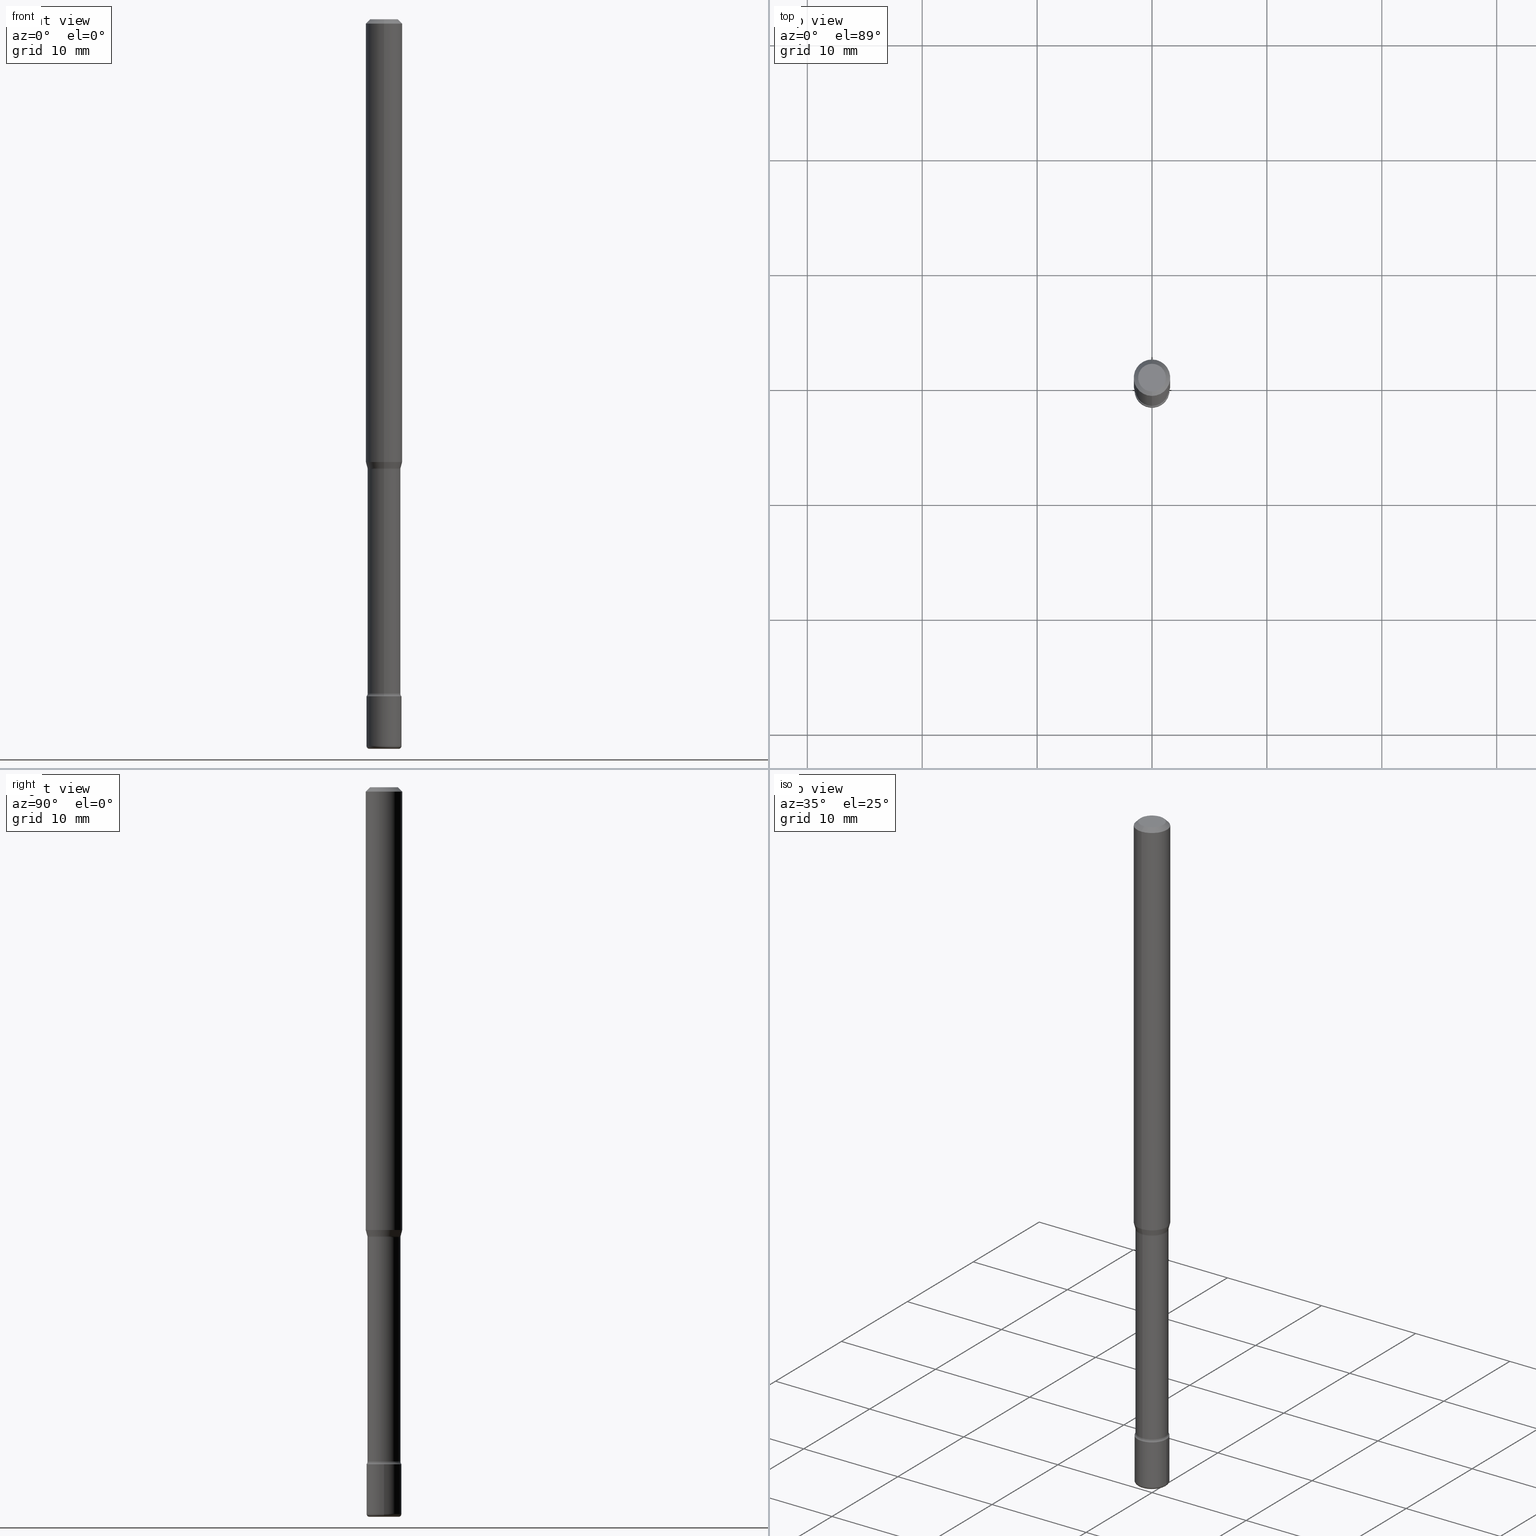
[diagram: canonical four-view strip — front | top / right | iso, engineering-drawing reading convention]
A machine part, canonical four-view strip (front | top / right | iso — engineering-drawing reading convention). The complete STEP part file that produces these views, byte-faithful:
ISO-10303-21;
HEADER;
FILE_DESCRIPTION (( 'STEP AP203' ),
    '1' );
FILE_NAME ('08981.STEP',
    '2024-03-06T20:13:47',
    ( '' ),
    ( '' ),
    'SwSTEP 2.0',
    'SolidWorks 2023',
    '' );
FILE_SCHEMA (( 'CONFIG_CONTROL_DESIGN' ));
ENDSEC;

DATA;
#1 = DIRECTION ( 'NONE',  ( -1.000000000000000000, 6.982962677686265922E-15, -4.876176775795935793E-29 ) ) ;
#2 = EDGE_CURVE ( 'NONE', #443, #77, #262, .T. ) ;
#3 = DIRECTION ( 'NONE',  ( -2.445374119236681714E-29, 3.491616935942579411E-15, 1.000000000000000000 ) ) ;
#4 = VECTOR ( 'NONE', #547, 39.37007874015748143 ) ;
#5 = AXIS2_PLACEMENT_3D ( 'NONE', #513, #472, #1 ) ;
#6 = LINE ( 'NONE', #192, #140 ) ;
#7 = DIRECTION ( 'NONE',  ( 1.000000000000000000, -6.982962677686275388E-15, 0.000000000000000000 ) ) ;
#8 = FACE_OUTER_BOUND ( 'NONE', #310, .T. ) ;
#9 = DIRECTION ( 'NONE',  ( -2.445374119236681714E-29, 3.491616935942579411E-15, 1.000000000000000000 ) ) ;
#10 = DIRECTION ( 'NONE',  ( -6.982962677686265922E-15, -1.000000000000000000, 4.370956789862821150E-15 ) ) ;
#11 = ADVANCED_FACE ( 'NONE', ( #477 ), #107, .F. ) ;
#12 = CARTESIAN_POINT ( 'NONE',  ( 0.04999999999999999584, -9.042936667603745051E-15, -2.489999999999999769 ) ) ;
#13 = CYLINDRICAL_SURFACE ( 'NONE', #268, 0.05999999999999999778 ) ;
#14 = DIRECTION ( 'NONE',  ( 7.105427357601001859E-15, 1.000000000000000000, 0.000000000000000000 ) ) ;
#15 = VECTOR ( 'NONE', #73, 39.37007874015748143 ) ;
#16 = APPROVAL_ROLE ( '' ) ;
#17 = LENGTH_MEASURE_WITH_UNIT ( LENGTH_MEASURE( 0.02539999999999999897 ), #219 );
#18 = EDGE_LOOP ( 'NONE', ( #525, #429, #207, #306 ) ) ;
#19 =( NAMED_UNIT ( * ) PLANE_ANGLE_UNIT ( ) SI_UNIT ( $, .RADIAN. ) );
#20 = CARTESIAN_POINT ( 'NONE',  ( -0.04999999999999999584, -8.320447435745592091E-15, -2.500000000000000000 ) ) ;
#21 = ORIENTED_EDGE ( 'NONE', *, *, #122, .F. ) ;
#22 = ORIENTED_EDGE ( 'NONE', *, *, #232, .T. ) ;
#23 = AXIS2_PLACEMENT_3D ( 'NONE', #277, #459, #491 ) ;
#24 = AXIS2_PLACEMENT_3D ( 'NONE', #129, #439, #299 ) ;
#25 = ORIENTED_EDGE ( 'NONE', *, *, #74, .F. ) ;
#26 = DIRECTION ( 'NONE',  ( -6.982962677686265133E-15, -1.000000000000000000, 3.491616935942579411E-15 ) ) ;
#27 = DIRECTION ( 'NONE',  ( -2.445374119236681714E-29, 3.491616935942579411E-15, 1.000000000000000000 ) ) ;
#28 = EDGE_CURVE ( 'NONE', #424, #79, #127, .T. ) ;
#29 = EDGE_LOOP ( 'NONE', ( #128, #231, #246, #254 ) ) ;
#30 = FACE_OUTER_BOUND ( 'NONE', #555, .T. ) ;
#31 = ORIENTED_EDGE ( 'NONE', *, *, #67, .F. ) ;
#32 = CIRCLE ( 'NONE', #172, 0.05691111260566398405 ) ;
#33 = AXIS2_PLACEMENT_3D ( 'NONE', #138, #276, #94 ) ;
#34 = ORIENTED_EDGE ( 'NONE', *, *, #251, .F. ) ;
#35 = DIRECTION ( 'NONE',  ( -2.445468806185136597E-29, 3.491481338843145583E-15, 1.000000000000000000 ) ) ;
#36 = CARTESIAN_POINT ( 'NONE',  ( 5.673487630349517039E-29, -8.100236706116098414E-15, -2.320000000000000284 ) ) ;
#37 = DIRECTION ( 'NONE',  ( -2.445374119236681714E-29, 3.491616935942579411E-15, 1.000000000000000000 ) ) ;
#38 = FACE_OUTER_BOUND ( 'NONE', #18, .T. ) ;
#39 = SECURITY_CLASSIFICATION_LEVEL ( 'unclassified' ) ;
#40 = DIRECTION ( 'NONE',  ( -2.445374119236681714E-29, 3.491616935942579411E-15, 1.000000000000000000 ) ) ;
#41 = AXIS2_PLACEMENT_3D ( 'NONE', #544, #149, #10 ) ;
#42 = AXIS2_PLACEMENT_3D ( 'NONE', #528, #346, #356 ) ;
#43 = DIRECTION ( 'NONE',  ( -2.445468806185136597E-29, 3.491481338843145583E-15, 1.000000000000000000 ) ) ;
#44 = APPLICATION_PROTOCOL_DEFINITION ( 'international standard', 'config_control_design', 1994, #351 ) ;
#45 = DATE_AND_TIME ( #90, #303 ) ;
#46 = EDGE_CURVE ( 'NONE', #77, #392, #176, .T. ) ;
#47 = CARTESIAN_POINT ( 'NONE',  ( 3.761211596862597210E-29, -5.370429828286734542E-15, -1.538092501787273081 ) ) ;
#48 = DIRECTION ( 'NONE',  ( -2.445374119236681714E-29, 3.491616935942579411E-15, 1.000000000000000000 ) ) ;
#49 = CARTESIAN_POINT ( 'NONE',  ( 4.007461029686965452E-16, 0.05640000000000001262, 2.811462037040845346E-16 ) ) ;
#50 = APPROVAL_STATUS ( 'not_yet_approved' ) ;
#51 = AXIS2_PLACEMENT_3D ( 'NONE', #312, #270, #453 ) ;
#52 = CIRCLE ( 'NONE', #458, 0.05999999999999999778 ) ;
#53 = DIRECTION ( 'NONE',  ( -2.445374119236681714E-29, 3.491616935942579411E-15, 1.000000000000000000 ) ) ;
#54 = EDGE_CURVE ( 'NONE', #160, #390, #85, .T. ) ;
#55 = FACE_OUTER_BOUND ( 'NONE', #385, .T. ) ;
#56 = SHAPE_DEFINITION_REPRESENTATION ( #307, #186 ) ;
#57 = CARTESIAN_POINT ( 'NONE',  ( 6.618217965397815086E-46, -9.462740114103690246E-32, -2.708274633491637065E-17 ) ) ;
#58 = CARTESIAN_POINT ( 'NONE',  ( 4.135358722124349706E-16, 0.05639999999999196351, -2.310251153914437250 ) ) ;
#59 = CYLINDRICAL_SURFACE ( 'NONE', #422, 0.05640000000000001262 ) ;
#60 = ORIENTED_EDGE ( 'NONE', *, *, #438, .F. ) ;
#61 = CONICAL_SURFACE ( 'NONE', #92, 0.05691111260566398405, 0.2617993877991477980 ) ;
#62 = VECTOR ( 'NONE', #194, 39.37007874015748854 ) ;
#63 = PLANE ( 'NONE',  #499 ) ;
#64 = DATE_AND_TIME ( #376, #115 ) ;
#65 = CC_DESIGN_PERSON_AND_ORGANIZATION_ASSIGNMENT ( #419, #510, ( #333 ) ) ;
#66 = EDGE_LOOP ( 'NONE', ( #215, #295, #25, #508 ) ) ;
#67 = EDGE_CURVE ( 'NONE', #298, #443, #405, .T. ) ;
#68 = DIRECTION ( 'NONE',  ( 6.982962677686265922E-15, 1.000000000000000000, -3.483106191921935554E-15 ) ) ;
#69 = ORIENTED_EDGE ( 'NONE', *, *, #416, .T. ) ;
#70 = CARTESIAN_POINT ( 'NONE',  ( 5.073275133327491387E-16, 0.07139999999999460667, -1.541974787463811225 ) ) ;
#71 = ORIENTED_EDGE ( 'NONE', *, *, #261, .F. ) ;
#72 = CIRCLE ( 'NONE', #302, 0.04999999999999999584 ) ;
#73 = DIRECTION ( 'NONE',  ( 1.839019923739583355E-15, 0.2588190451025225713, 0.9659258262890678681 ) ) ;
#74 = EDGE_CURVE ( 'NONE', #516, #300, #479, .T. ) ;
#75 = ORIENTED_EDGE ( 'NONE', *, *, #28, .T. ) ;
#76 = CARTESIAN_POINT ( 'NONE',  ( 0.06000000000000004635, -9.112766294380608350E-15, -2.489999999999999769 ) ) ;
#77 = VERTEX_POINT ( 'NONE', #430 ) ;
#78 = FACE_OUTER_BOUND ( 'NONE', #110, .T. ) ;
#79 = VERTEX_POINT ( 'NONE', #398 ) ;
#80 = CARTESIAN_POINT ( 'NONE',  ( 6.113672015462842613E-29, -8.728703347107864943E-15, -2.500000000000000000 ) ) ;
#81 = CARTESIAN_POINT ( 'NONE',  ( 3.761211596862597210E-29, -5.370429828286734542E-15, -1.538092501787273081 ) ) ;
#82 = FACE_OUTER_BOUND ( 'NONE', #476, .T. ) ;
#83 = TOROIDAL_SURFACE ( 'NONE', #235, 0.07140000000000003288, 0.01500000000000000812 ) ;
#84 = LOCAL_TIME ( 15, 13, 47.00000000000000000, #505 ) ;
#85 = CIRCLE ( 'NONE', #42, 0.01500000000000000291 ) ;
#86 = EDGE_CURVE ( 'NONE', #253, #443, #248, .T. ) ;
#87 = DIRECTION ( 'NONE',  ( -4.851104656540965064E-15, -0.7071067811865501263, -0.7071067811865449082 ) ) ;
#88 = DIRECTION ( 'NONE',  ( -2.445374119236681714E-29, 3.491616935942579411E-15, 1.000000000000000000 ) ) ;
#89 = ORIENTED_EDGE ( 'NONE', *, *, #363, .T. ) ;
#90 = CALENDAR_DATE ( 2024, 6, 3 ) ;
#91 = CARTESIAN_POINT ( 'NONE',  ( 3.668061178855029262E-31, -5.237425403913879570E-17, -0.01500000000000002720 ) ) ;
#92 = AXIS2_PLACEMENT_3D ( 'NONE', #490, #27, #337 ) ;
#93 = ORIENTED_EDGE ( 'NONE', *, *, #28, .F. ) ;
#94 = DIRECTION ( 'NONE',  ( -6.982962677686265922E-15, -1.000000000000000000, 3.491616935942578228E-15 ) ) ;
#95 = CARTESIAN_POINT ( 'NONE',  ( 3.710205954839807473E-29, -5.297601641337987414E-15, -1.517234490073829711 ) ) ;
#96 = DIRECTION ( 'NONE',  ( -2.445468806185136597E-29, 3.491481338843145583E-15, 1.000000000000000000 ) ) ;
#97 = LINE ( 'NONE', #49, #535 ) ;
#98 = EDGE_CURVE ( 'NONE', #123, #298, #116, .T. ) ;
#99 = DIRECTION ( 'NONE',  ( 1.000000000000000000, -6.982962677686275388E-15, 4.883557194083115704E-29 ) ) ;
#100 = CIRCLE ( 'NONE', #285, 0.05639999999999999181 ) ;
#101 = CC_DESIGN_APPROVAL ( #239, ( #121 ) ) ;
#102 = DIRECTION ( 'NONE',  ( -6.982962677686265922E-15, -1.000000000000000000, 4.370956789862821150E-15 ) ) ;
#103 = FACE_OUTER_BOUND ( 'NONE', #292, .T. ) ;
#104 = DIRECTION ( 'NONE',  ( -6.982962677686265922E-15, -1.000000000000000000, 4.843702116425999219E-15 ) ) ;
#105 = ORIENTED_EDGE ( 'NONE', *, *, #485, .F. ) ;
#106 = AXIS2_PLACEMENT_3D ( 'NONE', #57, #53, #417 ) ;
#107 = TOROIDAL_SURFACE ( 'NONE', #425, 0.07139999999999999125, 0.01500000000000002373 ) ;
#108 =( NAMED_UNIT ( * ) SI_UNIT ( $, .STERADIAN. ) SOLID_ANGLE_UNIT ( ) );
#109 = DIRECTION ( 'NONE',  ( -2.445374119236681714E-29, 3.491616935942579411E-15, 1.000000000000000000 ) ) ;
#110 = EDGE_LOOP ( 'NONE', ( #31, #488, #119, #509 ) ) ;
#111 = CARTESIAN_POINT ( 'NONE',  ( 6.618217965397815086E-46, -9.462740114103690246E-32, -2.708274633491637065E-17 ) ) ;
#112 = VERTEX_POINT ( 'NONE', #520 ) ;
#113 = ADVANCED_FACE ( 'NONE', ( #78 ), #224, .T. ) ;
#114 = ORIENTED_EDGE ( 'NONE', *, *, #214, .T. ) ;
#115 = LOCAL_TIME ( 15, 13, 47.00000000000000000, #504 ) ;
#116 = CIRCLE ( 'NONE', #157, 0.04999999999999999584 ) ;
#117 = EDGE_LOOP ( 'NONE', ( #21, #131, #558, #565 ) ) ;
#118 = DIRECTION ( 'NONE',  ( -6.982962677686265922E-15, -1.000000000000000000, 3.491616935942579411E-15 ) ) ;
#119 = ORIENTED_EDGE ( 'NONE', *, *, #178, .T. ) ;
#120 = CARTESIAN_POINT ( 'NONE',  ( 3.770851242666705328E-29, -5.383776195396521708E-15, -1.541974787463811003 ) ) ;
#121 = PRODUCT_DEFINITION ( 'UNKNOWN', '', #333, #539 ) ;
#122 = EDGE_CURVE ( 'NONE', #136, #290, #553, .T. ) ;
#123 = VERTEX_POINT ( 'NONE', #540 ) ;
#124 = CIRCLE ( 'NONE', #411, 0.04749999999999998668 ) ;
#125 = DIRECTION ( 'NONE',  ( -2.445374119236681994E-29, 3.491616935942579411E-15, 1.000000000000000000 ) ) ;
#126 = CC_DESIGN_SECURITY_CLASSIFICATION ( #257, ( #333 ) ) ;
#127 = CIRCLE ( 'NONE', #189, 0.06250000000000000000 ) ;
#128 = ORIENTED_EDGE ( 'NONE', *, *, #98, .T. ) ;
#129 = CARTESIAN_POINT ( 'NONE',  ( -0.04999999999999999584, -8.338517165839381307E-15, -2.489999999999999769 ) ) ;
#130 = PRODUCT ( '08981', '08981', '', ( #399 ) ) ;
#131 = ORIENTED_EDGE ( 'NONE', *, *, #294, .T. ) ;
#132 = CARTESIAN_POINT ( 'NONE',  ( 6.089217327400989947E-29, -8.693788533719431716E-15, -2.489999999999999769 ) ) ;
#133 = CARTESIAN_POINT ( 'NONE',  ( -0.06000000000000004635, -8.267462892263371226E-15, -2.489999999999999769 ) ) ;
#134 = EDGE_CURVE ( 'NONE', #290, #208, #230, .T. ) ;
#135 = CARTESIAN_POINT ( 'NONE',  ( -4.364351673553916201E-16, -0.06250000000000000000, 6.962994573876572271E-16 ) ) ;
#136 = VERTEX_POINT ( 'NONE', #541 ) ;
#137 = APPROVAL_DATE_TIME ( #191, #501 ) ;
#138 = CARTESIAN_POINT ( 'NONE',  ( -1.169113584055446105E-44, 1.669184350826100908E-30, 4.780733988912460139E-16 ) ) ;
#139 = CARTESIAN_POINT ( 'NONE',  ( -4.985835351867615991E-16, -0.07140000000000538971, -1.541974787463810781 ) ) ;
#140 = VECTOR ( 'NONE', #369, 39.37007874015748143 ) ;
#141 = VECTOR ( 'NONE', #564, 39.37007874015748143 ) ;
#142 = CARTESIAN_POINT ( 'NONE',  ( 4.189777606612326922E-16, 0.05999999999999190009, -2.320000000000000284 ) ) ;
#143 = CARTESIAN_POINT ( 'NONE',  ( 5.649428380719043834E-29, -8.066512055288535170E-15, -2.310251153914436806 ) ) ;
#144 = DIRECTION ( 'NONE',  ( -6.982962677686265133E-15, -1.000000000000000000, 3.491616935942579411E-15 ) ) ;
#145 = CYLINDRICAL_SURFACE ( 'NONE', #33, 0.06250000000000000000 ) ;
#146 = CONICAL_SURFACE ( 'NONE', #469, 0.06250000000000000000, 0.7853981633974485010 ) ;
#147 =( CONVERSION_BASED_UNIT ( 'INCH', #17 ) LENGTH_UNIT ( ) NAMED_UNIT ( #169 ) );
#148 = DIRECTION ( 'NONE',  ( 1.000000000000000000, -6.982962677686275388E-15, 4.883557194083115704E-29 ) ) ;
#149 = DIRECTION ( 'NONE',  ( -2.445374119236681714E-29, 3.491616935942579411E-15, 1.000000000000000000 ) ) ;
#150 = APPROVAL_STATUS ( 'not_yet_approved' ) ;
#151 = ADVANCED_FACE ( 'NONE', ( #460 ), #145, .T. ) ;
#152 = FACE_OUTER_BOUND ( 'NONE', #464, .T. ) ;
#153 = ORIENTED_EDGE ( 'NONE', *, *, #243, .F. ) ;
#154 = DIRECTION ( 'NONE',  ( -6.982962677686265133E-15, -1.000000000000000000, 3.491616935942579411E-15 ) ) ;
#155 = VERTEX_POINT ( 'NONE', #454 ) ;
#156 = AXIS2_PLACEMENT_3D ( 'NONE', #95, #279, #102 ) ;
#157 = AXIS2_PLACEMENT_3D ( 'NONE', #393, #43, #348 ) ;
#158 = FACE_OUTER_BOUND ( 'NONE', #66, .T. ) ;
#159 = EDGE_CURVE ( 'NONE', #112, #160, #305, .T. ) ;
#160 = VERTEX_POINT ( 'NONE', #58 ) ;
#161 = ORIENTED_EDGE ( 'NONE', *, *, #159, .F. ) ;
#162 = PERSON_AND_ORGANIZATION_ROLE ( 'creator' ) ;
#163 = ORIENTED_EDGE ( 'NONE', *, *, #340, .F. ) ;
#164 = AXIS2_PLACEMENT_3D ( 'NONE', #441, #37, #357 ) ;
#165 = DIRECTION ( 'NONE',  ( 2.445374119236681714E-29, -3.491616935942579411E-15, -1.000000000000000000 ) ) ;
#166 = ORIENTED_EDGE ( 'NONE', *, *, #447, .T. ) ;
#167 = APPROVAL ( #408, 'UNSPECIFIED' ) ;
#168 = DIRECTION ( 'NONE',  ( -6.982962677686265922E-15, -1.000000000000000000, 3.491616935942578228E-15 ) ) ;
#169 = DIMENSIONAL_EXPONENTS ( 1.000000000000000000, 0.000000000000000000, 0.000000000000000000, 0.000000000000000000, 0.000000000000000000, 0.000000000000000000, 0.000000000000000000 ) ;
#170 = ORIENTED_EDGE ( 'NONE', *, *, #98, .F. ) ;
#171 = ORIENTED_EDGE ( 'NONE', *, *, #400, .F. ) ;
#172 = AXIS2_PLACEMENT_3D ( 'NONE', #47, #3, #187 ) ;
#173 = DIRECTION ( 'NONE',  ( -2.445468806185136597E-29, 3.491481338843145583E-15, 1.000000000000000000 ) ) ;
#174 = DIRECTION ( 'NONE',  ( -2.445468806185136597E-29, 3.491481338843145583E-15, 1.000000000000000000 ) ) ;
#175 = CARTESIAN_POINT ( 'NONE',  ( 0.05999999999999999778, -8.519214466777275048E-15, -2.320000000000000284 ) ) ;
#176 = CIRCLE ( 'NONE', #500, 0.05999999999999999778 ) ;
#177 = PERSON ( 'UNSPECIFIED', 'UNSPECIFIED', 'UNSPECIFIED', ('UNSPECIFIED'), ('UNSPECIFIED'), ('UNSPECIFIED') ) ;
#178 = EDGE_CURVE ( 'NONE', #123, #253, #367, .T. ) ;
#179 = DIRECTION ( 'NONE',  ( -1.000000000000000000, 6.982962677686265922E-15, -4.883557194083112340E-29 ) ) ;
#180 = CARTESIAN_POINT ( 'NONE',  ( -3.938390950215054539E-16, -0.05640000000000001262, 6.750005940784075426E-16 ) ) ;
#181 = DIRECTION ( 'NONE',  ( -6.982962677686265922E-15, -1.000000000000000000, 4.553079989440439092E-15 ) ) ;
#182 = COORDINATED_UNIVERSAL_TIME_OFFSET ( 5, 0, .BEHIND. ) ;
#183 = CARTESIAN_POINT ( 'NONE',  ( -4.364351673553544450E-16, -0.06250000000000527356, -1.517234490073829489 ) ) ;
#184 = CARTESIAN_POINT ( 'NONE',  ( 0.000000000000000000, 0.000000000000000000, 0.000000000000000000 ) ) ;
#185 = DIRECTION ( 'NONE',  ( -6.982962677686265922E-15, -1.000000000000000000, 4.843702116425996063E-15 ) ) ;
#186 = ADVANCED_BREP_SHAPE_REPRESENTATION ( '08981', ( #286, #475, #493 ), #211 ) ;
#187 = DIRECTION ( 'NONE',  ( -6.982962677686265922E-15, -1.000000000000000000, 4.800201346603757313E-15 ) ) ;
#188 = PERSON_AND_ORGANIZATION_ROLE ( 'design_owner' ) ;
#189 = AXIS2_PLACEMENT_3D ( 'NONE', #360, #217, #269 ) ;
#190 = DIRECTION ( 'NONE',  ( -2.445374119236681994E-29, 3.491616935942579411E-15, 1.000000000000000000 ) ) ;
#191 = DATE_AND_TIME ( #414, #412 ) ;
#192 = CARTESIAN_POINT ( 'NONE',  ( 4.364351673553919652E-16, 0.06249999999999995143, -0.01500000000000024578 ) ) ;
#193 = EDGE_CURVE ( 'NONE', #112, #155, #463, .T. ) ;
#194 = DIRECTION ( 'NONE',  ( -1.807323732225313179E-15, -0.2588190451025157435, 0.9659258262890694224 ) ) ;
#195 = DIRECTION ( 'NONE',  ( -6.982962677686266711E-15, -1.000000000000000000, 3.491481338843145583E-15 ) ) ;
#196 = CARTESIAN_POINT ( 'NONE',  ( 6.089217327400989947E-29, -8.693788533719431716E-15, -2.489999999999999769 ) ) ;
#197 = COORDINATED_UNIVERSAL_TIME_OFFSET ( 5, 0, .BEHIND. ) ;
#198 = ORIENTED_EDGE ( 'NONE', *, *, #86, .T. ) ;
#199 = ORIENTED_EDGE ( 'NONE', *, *, #518, .F. ) ;
#200 = PERSON_AND_ORGANIZATION ( #177, #435 ) ;
#201 = LINE ( 'NONE', #308, #203 ) ;
#202 = DIRECTION ( 'NONE',  ( -2.445468806185136597E-29, 3.491481338843145583E-15, 1.000000000000000000 ) ) ;
#203 = VECTOR ( 'NONE', #87, 39.37007874015748143 ) ;
#204 = ORIENTED_EDGE ( 'NONE', *, *, #416, .F. ) ;
#205 = CARTESIAN_POINT ( 'NONE',  ( -1.169113584055446105E-44, 1.669184350826100908E-30, 4.780733988912460139E-16 ) ) ;
#206 = ORIENTED_EDGE ( 'NONE', *, *, #566, .F. ) ;
#207 = ORIENTED_EDGE ( 'NONE', *, *, #400, .T. ) ;
#208 = VERTEX_POINT ( 'NONE', #183 ) ;
#209 = CIRCLE ( 'NONE', #492, 0.05640000000000002650 ) ;
#210 = ADVANCED_FACE ( 'NONE', ( #103 ), #570, .F. ) ;
#211 =( GEOMETRIC_REPRESENTATION_CONTEXT ( 3 ) GLOBAL_UNCERTAINTY_ASSIGNED_CONTEXT ( ( #324 ) ) GLOBAL_UNIT_ASSIGNED_CONTEXT ( ( #147, #19, #108 ) ) REPRESENTATION_CONTEXT ( 'NONE', 'WORKASPACE' ) );
#212 = ORIENTED_EDGE ( 'NONE', *, *, #74, .T. ) ;
#213 = DIRECTION ( 'NONE',  ( -2.445374119236681714E-29, 3.491616935942579411E-15, 1.000000000000000000 ) ) ;
#214 = EDGE_CURVE ( 'NONE', #253, #392, #234, .T. ) ;
#215 = ORIENTED_EDGE ( 'NONE', *, *, #159, .T. ) ;
#216 = AXIS2_PLACEMENT_3D ( 'NONE', #70, #420, #14 ) ;
#217 = DIRECTION ( 'NONE',  ( -2.445374119236681714E-29, 3.491616935942579411E-15, 1.000000000000000000 ) ) ;
#218 = CC_DESIGN_APPROVAL ( #167, ( #333 ) ) ;
#219 =( LENGTH_UNIT ( ) NAMED_UNIT ( * ) SI_UNIT ( $, .METRE. ) );
#220 = CARTESIAN_POINT ( 'NONE',  ( 4.440892098500997912E-16, 0.06249999999999472644, -1.517234490073829933 ) ) ;
#221 = FACE_OUTER_BOUND ( 'NONE', #29, .T. ) ;
#222 = DIRECTION ( 'NONE',  ( -2.445468806185136877E-29, 3.491481338843145188E-15, 1.000000000000000000 ) ) ;
#223 = EDGE_CURVE ( 'NONE', #155, #390, #52, .T. ) ;
#224 = TOROIDAL_SURFACE ( 'NONE', #551, 0.04999999999999999584, 0.01000000000000008521 ) ;
#225 = AXIS2_PLACEMENT_3D ( 'NONE', #445, #88, #168 ) ;
#226 = DIRECTION ( 'NONE',  ( -2.445374119236681994E-29, 3.491616935942579411E-15, 1.000000000000000000 ) ) ;
#227 = VECTOR ( 'NONE', #222, 39.37007874015748143 ) ;
#228 = DIRECTION ( 'NONE',  ( -6.982962677686265922E-15, -1.000000000000000000, 3.491616935942579411E-15 ) ) ;
#229 = CARTESIAN_POINT ( 'NONE',  ( 5.673487630349517039E-29, -8.100236706116098414E-15, -2.320000000000000284 ) ) ;
#230 = LINE ( 'NONE', #456, #62 ) ;
#231 = ORIENTED_EDGE ( 'NONE', *, *, #67, .T. ) ;
#232 = EDGE_CURVE ( 'NONE', #237, #424, #6, .T. ) ;
#233 = CARTESIAN_POINT ( 'NONE',  ( -3.938390950214675886E-16, -0.05640000000000538333, -1.541974787463810781 ) ) ;
#234 = LINE ( 'NONE', #536, #227 ) ;
#235 = AXIS2_PLACEMENT_3D ( 'NONE', #568, #358, #487 ) ;
#236 = CARTESIAN_POINT ( 'NONE',  ( -1.169113584055446105E-44, 1.669184350826100908E-30, 4.780733988912460139E-16 ) ) ;
#237 = VERTEX_POINT ( 'NONE', #498 ) ;
#238 = DIRECTION ( 'NONE',  ( 1.000000000000000000, -6.982962677686268288E-15, 0.000000000000000000 ) ) ;
#239 = APPROVAL ( #150, 'UNSPECIFIED' ) ;
#240 = ORIENTED_EDGE ( 'NONE', *, *, #223, .T. ) ;
#241 = ORIENTED_EDGE ( 'NONE', *, *, #497, .F. ) ;
#242 = CALENDAR_DATE ( 2024, 6, 3 ) ;
#243 = EDGE_CURVE ( 'NONE', #298, #123, #72, .T. ) ;
#244 = DIRECTION ( 'NONE',  ( -6.982962677686265922E-15, -1.000000000000000000, 3.491616935942579411E-15 ) ) ;
#245 = AXIS2_PLACEMENT_3D ( 'NONE', #446, #40, #181 ) ;
#246 = ORIENTED_EDGE ( 'NONE', *, *, #86, .F. ) ;
#247 = ORIENTED_EDGE ( 'NONE', *, *, #497, .T. ) ;
#248 = CIRCLE ( 'NONE', #314, 0.05999999999999999778 ) ;
#249 = EDGE_LOOP ( 'NONE', ( #71, #466, #359, #470 ) ) ;
#250 = LINE ( 'NONE', #388, #15 ) ;
#251 = EDGE_CURVE ( 'NONE', #237, #519, #124, .T. ) ;
#252 = ADVANCED_FACE ( 'NONE', ( #328 ), #397, .F. ) ;
#253 = VERTEX_POINT ( 'NONE', #76 ) ;
#254 = ORIENTED_EDGE ( 'NONE', *, *, #178, .F. ) ;
#255 = PERSON_AND_ORGANIZATION ( #177, #435 ) ;
#256 = CIRCLE ( 'NONE', #523, 0.05999999999999999778 ) ;
#257 = SECURITY_CLASSIFICATION ( '', '', #39 ) ;
#258 = CARTESIAN_POINT ( 'NONE',  ( 6.089217327400989947E-29, -8.693788533719431716E-15, -2.489999999999999769 ) ) ;
#259 = CYLINDRICAL_SURFACE ( 'NONE', #449, 0.05999999999999999778 ) ;
#260 = EDGE_LOOP ( 'NONE', ( #448, #515, #114, #374 ) ) ;
#261 = EDGE_CURVE ( 'NONE', #136, #381, #250, .T. ) ;
#262 = LINE ( 'NONE', #531, #141 ) ;
#263 = DIRECTION ( 'NONE',  ( -6.982962677686263555E-15, -1.000000000000000000, 0.000000000000000000 ) ) ;
#264 = ADVANCED_FACE ( 'NONE', ( #30 ), #146, .T. ) ;
#265 = DIRECTION ( 'NONE',  ( -6.982962677686265922E-15, -1.000000000000000000, 4.843702116425996063E-15 ) ) ;
#266 = ORIENTED_EDGE ( 'NONE', *, *, #363, .F. ) ;
#267 = ORIENTED_EDGE ( 'NONE', *, *, #554, .F. ) ;
#268 = AXIS2_PLACEMENT_3D ( 'NONE', #431, #486, #542 ) ;
#269 = DIRECTION ( 'NONE',  ( -6.982962677686265922E-15, -1.000000000000000000, 3.483106191921935554E-15 ) ) ;
#270 = DIRECTION ( 'NONE',  ( 2.445374119236681433E-29, -3.491616935942579411E-15, -1.000000000000000000 ) ) ;
#271 = DIRECTION ( 'NONE',  ( -6.982962677686265922E-15, -1.000000000000000000, 3.491616935942579411E-15 ) ) ;
#272 = APPLICATION_PROTOCOL_DEFINITION ( 'international standard', 'config_control_design', 1994, #318 ) ;
#273 = ADVANCED_FACE ( 'NONE', ( #158 ), #427, .T. ) ;
#274 = ADVANCED_FACE ( 'NONE', ( #478 ), #534, .T. ) ;
#275 = LINE ( 'NONE', #409, #4 ) ;
#276 = DIRECTION ( 'NONE',  ( -2.445374119236681714E-29, 3.491616935942579411E-15, 1.000000000000000000 ) ) ;
#277 = CARTESIAN_POINT ( 'NONE',  ( 6.089217327400989947E-29, -8.693788533719431716E-15, -2.489999999999999769 ) ) ;
#278 = CIRCLE ( 'NONE', #23, 0.05999999999999999778 ) ;
#279 = DIRECTION ( 'NONE',  ( -2.445374119236681714E-29, 3.491616935942579411E-15, 1.000000000000000000 ) ) ;
#280 = EDGE_CURVE ( 'NONE', #112, #516, #394, .T. ) ;
#281 = DIRECTION ( 'NONE',  ( -2.445374119236681714E-29, 3.491616935942579411E-15, 1.000000000000000000 ) ) ;
#282 = DATE_TIME_ROLE ( 'creation_date' ) ;
#283 = FACE_OUTER_BOUND ( 'NONE', #336, .T. ) ;
#284 = APPROVAL_ROLE ( '' ) ;
#285 = AXIS2_PLACEMENT_3D ( 'NONE', #406, #281, #104 ) ;
#286 = MANIFOLD_SOLID_BREP ( 'Body-Move/Copy2[1]', #330 ) ;
#287 = ORIENTED_EDGE ( 'NONE', *, *, #251, .T. ) ;
#288 = ADVANCED_FACE ( 'NONE', ( #304 ), #512, .T. ) ;
#289 = DIRECTION ( 'NONE',  ( -2.445374119236681714E-29, 3.491616935942579411E-15, 1.000000000000000000 ) ) ;
#290 = VERTEX_POINT ( 'NONE', #529 ) ;
#291 = CONICAL_SURFACE ( 'NONE', #371, 0.06250000000000000000, 0.7853981633974485010 ) ;
#292 = EDGE_LOOP ( 'NONE', ( #347, #161, #426, #240 ) ) ;
#293 = ADVANCED_FACE ( 'NONE', ( #309 ), #532, .F. ) ;
#294 = EDGE_CURVE ( 'NONE', #136, #300, #342, .T. ) ;
#295 = ORIENTED_EDGE ( 'NONE', *, *, #554, .T. ) ;
#296 = ORIENTED_EDGE ( 'NONE', *, *, #320, .F. ) ;
#297 = CARTESIAN_POINT ( 'NONE',  ( 4.440892098500998898E-16, 0.06249999999999993755, -0.01500000000000024578 ) ) ;
#298 = VERTEX_POINT ( 'NONE', #20 ) ;
#299 = DIRECTION ( 'NONE',  ( -1.000000000000000000, 7.105427357600964782E-15, 0.000000000000000000 ) ) ;
#300 = VERTEX_POINT ( 'NONE', #413 ) ;
#301 = AXIS2_PLACEMENT_3D ( 'NONE', #143, #533, #185 ) ;
#302 = AXIS2_PLACEMENT_3D ( 'NONE', #80, #202, #7 ) ;
#303 = LOCAL_TIME ( 15, 13, 47.00000000000000000, #182 ) ;
#304 = FACE_OUTER_BOUND ( 'NONE', #249, .T. ) ;
#305 = CIRCLE ( 'NONE', #301, 0.05640000000000002650 ) ;
#306 = ORIENTED_EDGE ( 'NONE', *, *, #193, .F. ) ;
#307 = PRODUCT_DEFINITION_SHAPE ( 'NONE', 'NONE',  #121 ) ;
#308 = CARTESIAN_POINT ( 'NONE',  ( -4.287811248607203282E-16, -0.06250000000000005551, -0.01499999999999981036 ) ) ;
#309 = FACE_OUTER_BOUND ( 'NONE', #350, .T. ) ;
#310 = EDGE_LOOP ( 'NONE', ( #170, #153 ) ) ;
#311 = DATE_TIME_ROLE ( 'classification_date' ) ;
#312 = CARTESIAN_POINT ( 'NONE',  ( 3.316907271900975110E-16, 0.04749999999999998668, 5.964352182089237639E-17 ) ) ;
#313 = CC_DESIGN_PERSON_AND_ORGANIZATION_ASSIGNMENT ( #436, #355, ( #333 ) ) ;
#314 = AXIS2_PLACEMENT_3D ( 'NONE', #132, #489, #474 ) ;
#315 = ADVANCED_FACE ( 'NONE', ( #152 ), #63, .T. ) ;
#316 = PERSON_AND_ORGANIZATION_ROLE ( 'classification_officer' ) ;
#317 = DIRECTION ( 'NONE',  ( -2.445374119236681433E-29, 3.491616935942579411E-15, 1.000000000000000000 ) ) ;
#318 = APPLICATION_CONTEXT ( 'configuration controlled 3d designs of mechanical parts and assemblies' ) ;
#319 = CARTESIAN_POINT ( 'NONE',  ( 5.673267956629101509E-29, -8.100551291386784361E-15, -2.320000000000000284 ) ) ;
#320 = EDGE_CURVE ( 'NONE', #300, #516, #100, .T. ) ;
#321 = DIRECTION ( 'NONE',  ( -2.445374119236681714E-29, 3.491616935942579411E-15, 1.000000000000000000 ) ) ;
#322 = CIRCLE ( 'NONE', #432, 0.01500000000000002720 ) ;
#323 = FACE_OUTER_BOUND ( 'NONE', #260, .T. ) ;
#324 = UNCERTAINTY_MEASURE_WITH_UNIT (LENGTH_MEASURE( 1.000000000000000082E-05 ), #147, 'distance_accuracy_value', 'NONE');
#325 = DIRECTION ( 'NONE',  ( -1.000000000000000000, 6.982962677686265922E-15, -4.883557194083112340E-29 ) ) ;
#326 = DIRECTION ( 'NONE',  ( -2.438088387897960049E-29, 3.491481338843145188E-15, 1.000000000000000000 ) ) ;
#327 = ORIENTED_EDGE ( 'NONE', *, *, #375, .T. ) ;
#328 = FACE_OUTER_BOUND ( 'NONE', #117, .T. ) ;
#329 = PRODUCT_RELATED_PRODUCT_CATEGORY ( 'detail', '', ( #130 ) ) ;
#330 = CLOSED_SHELL ( 'NONE', ( #462, #526, #315, #559, #113, #483 ) ) ;
#331 = CIRCLE ( 'NONE', #41, 0.06250000000000000000 ) ;
#332 = PERSON_AND_ORGANIZATION ( #177, #435 ) ;
#333 = PRODUCT_DEFINITION_FORMATION_WITH_SPECIFIED_SOURCE ( 'ANY', '', #130, .NOT_KNOWN. ) ;
#334 = ORIENTED_EDGE ( 'NONE', *, *, #566, .T. ) ;
#335 = ORIENTED_EDGE ( 'NONE', *, *, #46, .T. ) ;
#336 = EDGE_LOOP ( 'NONE', ( #267, #327, #338, #296 ) ) ;
#337 = DIRECTION ( 'NONE',  ( -6.982962677686265922E-15, -1.000000000000000000, 4.800201346603757313E-15 ) ) ;
#338 = ORIENTED_EDGE ( 'NONE', *, *, #280, .T. ) ;
#339 = DATE_AND_TIME ( #467, #84 ) ;
#340 = EDGE_CURVE ( 'NONE', #208, #381, #331, .T. ) ;
#341 = DIRECTION ( 'NONE',  ( -2.445374119236681714E-29, 3.491616935942579411E-15, 1.000000000000000000 ) ) ;
#342 = CIRCLE ( 'NONE', #216, 0.01500000000000002720 ) ;
#343 = ORIENTED_EDGE ( 'NONE', *, *, #261, .T. ) ;
#344 = EDGE_LOOP ( 'NONE', ( #563, #266, #166, #212 ) ) ;
#345 = AXIS2_PLACEMENT_3D ( 'NONE', #81, #321, #410 ) ;
#346 = DIRECTION ( 'NONE',  ( 1.000000000000000000, -7.105427357601001070E-15, 4.926317169127620293E-29 ) ) ;
#347 = ORIENTED_EDGE ( 'NONE', *, *, #54, .F. ) ;
#348 = DIRECTION ( 'NONE',  ( 1.000000000000000000, -6.982962677686275388E-15, 0.000000000000000000 ) ) ;
#349 = DIRECTION ( 'NONE',  ( 2.445374119236681714E-29, -3.491616935942579411E-15, -1.000000000000000000 ) ) ;
#350 = EDGE_LOOP ( 'NONE', ( #287, #428 ) ) ;
#351 = APPLICATION_CONTEXT ( 'configuration controlled 3d designs of mechanical parts and assemblies' ) ;
#352 = ADVANCED_FACE ( 'NONE', ( #283 ), #59, .T. ) ;
#353 = ORIENTED_EDGE ( 'NONE', *, *, #232, .F. ) ;
#354 = AXIS2_PLACEMENT_3D ( 'NONE', #142, #317, #228 ) ;
#355 = PERSON_AND_ORGANIZATION_ROLE ( 'design_supplier' ) ;
#356 = DIRECTION ( 'NONE',  ( 7.105427357601006592E-15, 1.000000000000000000, 0.000000000000000000 ) ) ;
#357 = DIRECTION ( 'NONE',  ( -6.982962677686265922E-15, -1.000000000000000000, 4.800201346603757313E-15 ) ) ;
#358 = DIRECTION ( 'NONE',  ( -2.445374119236681714E-29, 3.491616935942579411E-15, 1.000000000000000000 ) ) ;
#359 = ORIENTED_EDGE ( 'NONE', *, *, #134, .T. ) ;
#360 = CARTESIAN_POINT ( 'NONE',  ( 3.668061178855029262E-31, -5.237425403913879570E-17, -0.01500000000000002720 ) ) ;
#361 = CARTESIAN_POINT ( 'NONE',  ( 3.668061178855029262E-31, -5.237425403913879570E-17, -0.01500000000000002720 ) ) ;
#362 = DIRECTION ( 'NONE',  ( 1.000000000000000000, -6.982962677686275388E-15, 0.000000000000000000 ) ) ;
#363 = EDGE_CURVE ( 'NONE', #290, #136, #32, .T. ) ;
#364 = DIRECTION ( 'NONE',  ( 0.000000000000000000, 0.000000000000000000, 1.000000000000000000 ) ) ;
#365 = DIRECTION ( 'NONE',  ( -2.445374119236681714E-29, 3.491616935942579411E-15, 1.000000000000000000 ) ) ;
#366 = CARTESIAN_POINT ( 'NONE',  ( 5.649428380719043834E-29, -8.066512055288535170E-15, -2.310251153914436806 ) ) ;
#367 = CIRCLE ( 'NONE', #378, 0.01000000000000008174 ) ;
#368 = PLANE ( 'NONE',  #354 ) ;
#369 = DIRECTION ( 'NONE',  ( 4.937700262164548831E-15, 0.7071067811865452413, -0.7071067811865497932 ) ) ;
#370 = CARTESIAN_POINT ( 'NONE',  ( -4.985835351867431595E-16, -0.07140000000000810976, -2.310251153914436806 ) ) ;
#371 = AXIS2_PLACEMENT_3D ( 'NONE', #91, #349, #521 ) ;
#372 = LINE ( 'NONE', #135, #380 ) ;
#373 = ORIENTED_EDGE ( 'NONE', *, *, #518, .T. ) ;
#374 = ORIENTED_EDGE ( 'NONE', *, *, #46, .F. ) ;
#375 = EDGE_CURVE ( 'NONE', #160, #112, #209, .T. ) ;
#376 = CALENDAR_DATE ( 2024, 6, 3 ) ;
#377 = DATE_AND_TIME ( #242, #450 ) ;
#378 = AXIS2_PLACEMENT_3D ( 'NONE', #12, #195, #362 ) ;
#379 = VECTOR ( 'NONE', #125, 39.37007874015748143 ) ;
#380 = VECTOR ( 'NONE', #190, 39.37007874015748143 ) ;
#381 = VERTEX_POINT ( 'NONE', #220 ) ;
#382 = DIRECTION ( 'NONE',  ( -2.445374119236681714E-29, 3.491616935942579411E-15, 1.000000000000000000 ) ) ;
#383 = CC_DESIGN_PERSON_AND_ORGANIZATION_ASSIGNMENT ( #517, #316, ( #257 ) ) ;
#384 = EDGE_LOOP ( 'NONE', ( #105, #386, #69, #353 ) ) ;
#385 = EDGE_LOOP ( 'NONE', ( #433, #171 ) ) ;
#386 = ORIENTED_EDGE ( 'NONE', *, *, #438, .T. ) ;
#387 = DIRECTION ( 'NONE',  ( -6.982962677686265922E-15, -1.000000000000000000, 3.483106191921935554E-15 ) ) ;
#388 = CARTESIAN_POINT ( 'NONE',  ( 4.043777764598336301E-16, 0.05691111260565861335, -1.538092501787273303 ) ) ;
#389 = CIRCLE ( 'NONE', #106, 0.04749999999999998668 ) ;
#390 = VERTEX_POINT ( 'NONE', #442 ) ;
#391 = APPROVAL_PERSON_ORGANIZATION ( #200, #167, #16 ) ;
#392 = VERTEX_POINT ( 'NONE', #175 ) ;
#393 = CARTESIAN_POINT ( 'NONE',  ( 6.113672015462842613E-29, -8.728703347107864943E-15, -2.500000000000000000 ) ) ;
#394 = LINE ( 'NONE', #180, #379 ) ;
#395 = ADVANCED_FACE ( 'NONE', ( #38 ), #83, .F. ) ;
#396 = EDGE_LOOP ( 'NONE', ( #511, #373, #204, #206 ) ) ;
#397 = TOROIDAL_SURFACE ( 'NONE', #545, 0.07139999999999999125, 0.01500000000000002373 ) ;
#398 = CARTESIAN_POINT ( 'NONE',  ( -4.364351673553912750E-16, -0.06250000000000005551, -0.01499999999999981036 ) ) ;
#399 = MECHANICAL_CONTEXT ( 'NONE', #318, 'mechanical' ) ;
#400 = EDGE_CURVE ( 'NONE', #390, #155, #506, .T. ) ;
#401 = PERSON_AND_ORGANIZATION ( #177, #435 ) ;
#402 = CIRCLE ( 'NONE', #156, 0.06250000000000000000 ) ;
#403 = DIRECTION ( 'NONE',  ( -6.982962677686265922E-15, -1.000000000000000000, 4.553079989440439092E-15 ) ) ;
#404 = CC_DESIGN_APPROVAL ( #501, ( #257 ) ) ;
#405 = CIRCLE ( 'NONE', #24, 0.01000000000000008174 ) ;
#406 = CARTESIAN_POINT ( 'NONE',  ( 3.770705237779486267E-29, -5.383985282705101280E-15, -1.541974787463811003 ) ) ;
#407 = COORDINATED_UNIVERSAL_TIME_OFFSET ( 5, 0, .BEHIND. ) ;
#408 = APPROVAL_STATUS ( 'not_yet_approved' ) ;
#409 = CARTESIAN_POINT ( 'NONE',  ( 4.440892098500625669E-16, 0.06250000000000000000, 2.598473403948348500E-16 ) ) ;
#410 = DIRECTION ( 'NONE',  ( -6.982962677686265922E-15, -1.000000000000000000, 4.800201346603757313E-15 ) ) ;
#411 = AXIS2_PLACEMENT_3D ( 'NONE', #111, #289, #154 ) ;
#412 = LOCAL_TIME ( 15, 13, 47.00000000000000000, #407 ) ;
#413 = CARTESIAN_POINT ( 'NONE',  ( 4.007461029687530474E-16, 0.05639999999999460029, -1.541974787463811225 ) ) ;
#414 = CALENDAR_DATE ( 2024, 6, 3 ) ;
#415 = ORIENTED_EDGE ( 'NONE', *, *, #214, .F. ) ;
#416 = EDGE_CURVE ( 'NONE', #79, #424, #569, .T. ) ;
#417 = DIRECTION ( 'NONE',  ( -6.982962677686265133E-15, -1.000000000000000000, 3.491616935942579411E-15 ) ) ;
#418 = ORIENTED_EDGE ( 'NONE', *, *, #524, .T. ) ;
#419 = PERSON_AND_ORGANIZATION ( #177, #435 ) ;
#420 = DIRECTION ( 'NONE',  ( 1.000000000000000000, -7.105427357601001070E-15, 4.926317169127620293E-29 ) ) ;
#421 = CC_DESIGN_PERSON_AND_ORGANIZATION_ASSIGNMENT ( #401, #188, ( #130 ) ) ;
#422 = AXIS2_PLACEMENT_3D ( 'NONE', #236, #9, #144 ) ;
#423 = APPROVAL_PERSON_ORGANIZATION ( #255, #501, #548 ) ;
#424 = VERTEX_POINT ( 'NONE', #297 ) ;
#425 = AXIS2_PLACEMENT_3D ( 'NONE', #120, #213, #118 ) ;
#426 = ORIENTED_EDGE ( 'NONE', *, *, #193, .T. ) ;
#427 = CYLINDRICAL_SURFACE ( 'NONE', #455, 0.05640000000000001262 ) ;
#428 = ORIENTED_EDGE ( 'NONE', *, *, #485, .T. ) ;
#429 = ORIENTED_EDGE ( 'NONE', *, *, #54, .T. ) ;
#430 = CARTESIAN_POINT ( 'NONE',  ( -0.05999999999999999778, -7.970686978461704575E-15, -2.320000000000000284 ) ) ;
#431 = CARTESIAN_POINT ( 'NONE',  ( 0.000000000000000000, 0.000000000000000000, 0.000000000000000000 ) ) ;
#432 = AXIS2_PLACEMENT_3D ( 'NONE', #139, #179, #263 ) ;
#433 = ORIENTED_EDGE ( 'NONE', *, *, #223, .F. ) ;
#434 = CC_DESIGN_DATE_AND_TIME_ASSIGNMENT ( #339, #282, ( #121 ) ) ;
#435 = ORGANIZATION ( 'UNSPECIFIED', 'UNSPECIFIED', '' ) ;
#436 = PERSON_AND_ORGANIZATION ( #177, #435 ) ;
#437 = AXIS2_PLACEMENT_3D ( 'NONE', #370, #325, #502 ) ;
#438 = EDGE_CURVE ( 'NONE', #519, #79, #201, .T. ) ;
#439 = DIRECTION ( 'NONE',  ( 7.105427357601001859E-15, 1.000000000000000000, -3.491481338843145583E-15 ) ) ;
#440 = FACE_OUTER_BOUND ( 'NONE', #384, .T. ) ;
#441 = CARTESIAN_POINT ( 'NONE',  ( 3.761211596862597210E-29, -5.370429828286734542E-15, -1.538092501787273081 ) ) ;
#442 = CARTESIAN_POINT ( 'NONE',  ( 4.263256414561168444E-16, 0.05999999999999190703, -2.320000000000000284 ) ) ;
#443 = VERTEX_POINT ( 'NONE', #133 ) ;
#444 = DIRECTION ( 'NONE',  ( 1.000000000000000000, -6.982962677686267499E-15, 4.876176775795936353E-29 ) ) ;
#445 = CARTESIAN_POINT ( 'NONE',  ( -1.169113584055446105E-44, 1.669184350826100908E-30, 4.780733988912460139E-16 ) ) ;
#446 = CARTESIAN_POINT ( 'NONE',  ( 5.673267956629101509E-29, -8.100551291386784361E-15, -2.320000000000000284 ) ) ;
#447 = EDGE_CURVE ( 'NONE', #290, #516, #322, .T. ) ;
#448 = ORIENTED_EDGE ( 'NONE', *, *, #2, .F. ) ;
#449 = AXIS2_PLACEMENT_3D ( 'NONE', #567, #174, #444 ) ;
#450 = LOCAL_TIME ( 15, 13, 47.00000000000000000, #197 ) ;
#451 = CARTESIAN_POINT ( 'NONE',  ( 3.770705237779486267E-29, -5.383985282705101280E-15, -1.541974787463811003 ) ) ;
#452 = DIRECTION ( 'NONE',  ( 1.000000000000000000, 0.000000000000000000, 0.000000000000000000 ) ) ;
#453 = DIRECTION ( 'NONE',  ( 6.982962677686265922E-15, 1.000000000000000000, -3.491616935942579411E-15 ) ) ;
#454 = CARTESIAN_POINT ( 'NONE',  ( -4.189777606611192934E-16, -0.06000000000000810935, -2.319999999999999840 ) ) ;
#455 = AXIS2_PLACEMENT_3D ( 'NONE', #205, #382, #26 ) ;
#456 = CARTESIAN_POINT ( 'NONE',  ( -3.974081752709143750E-16, -0.05691111260566934782, -1.538092501787272859 ) ) ;
#457 = ADVANCED_FACE ( 'NONE', ( #440 ), #291, .T. ) ;
#458 = AXIS2_PLACEMENT_3D ( 'NONE', #319, #48, #403 ) ;
#459 = DIRECTION ( 'NONE',  ( -2.445468806185136597E-29, 3.491481338843145583E-15, 1.000000000000000000 ) ) ;
#460 = FACE_OUTER_BOUND ( 'NONE', #473, .T. ) ;
#461 = APPROVAL_DATE_TIME ( #64, #239 ) ;
#462 = ADVANCED_FACE ( 'NONE', ( #82 ), #259, .T. ) ;
#463 = CIRCLE ( 'NONE', #437, 0.01500000000000000291 ) ;
#464 = EDGE_LOOP ( 'NONE', ( #247, #335 ) ) ;
#465 = CC_DESIGN_PERSON_AND_ORGANIZATION_ASSIGNMENT ( #332, #162, ( #121 ) ) ;
#466 = ORIENTED_EDGE ( 'NONE', *, *, #122, .T. ) ;
#467 = CALENDAR_DATE ( 2024, 6, 3 ) ;
#468 = ADVANCED_FACE ( 'NONE', ( #572 ), #61, .T. ) ;
#469 = AXIS2_PLACEMENT_3D ( 'NONE', #560, #165, #68 ) ;
#470 = ORIENTED_EDGE ( 'NONE', *, *, #524, .F. ) ;
#471 = CARTESIAN_POINT ( 'NONE',  ( 3.770851242666705328E-29, -5.383776195396521708E-15, -1.541974787463811003 ) ) ;
#472 = DIRECTION ( 'NONE',  ( 2.438088387897960049E-29, -3.491481338843145188E-15, -1.000000000000000000 ) ) ;
#473 = EDGE_LOOP ( 'NONE', ( #199, #418, #334, #93 ) ) ;
#474 = DIRECTION ( 'NONE',  ( 1.000000000000000000, -6.982962677686251722E-15, 0.000000000000000000 ) ) ;
#475 = MANIFOLD_SOLID_BREP ( 'Body-Move/Copy2[2]', #527 ) ;
#476 = EDGE_LOOP ( 'NONE', ( #198, #556, #241, #415 ) ) ;
#477 = FACE_OUTER_BOUND ( 'NONE', #344, .T. ) ;
#478 = FACE_OUTER_BOUND ( 'NONE', #396, .T. ) ;
#479 = CIRCLE ( 'NONE', #562, 0.05639999999999999181 ) ;
#480 = TOROIDAL_SURFACE ( 'NONE', #552, 0.04999999999999999584, 0.01000000000000008521 ) ;
#481 = AXIS2_PLACEMENT_3D ( 'NONE', #494, #365, #271 ) ;
#482 = DIRECTION ( 'NONE',  ( -2.445374119236681714E-29, 3.491616935942579411E-15, 1.000000000000000000 ) ) ;
#483 = ADVANCED_FACE ( 'NONE', ( #323 ), #13, .T. ) ;
#484 = DIRECTION ( 'NONE',  ( -6.982962677686265922E-15, -1.000000000000000000, 4.843702116425999219E-15 ) ) ;
#485 = EDGE_CURVE ( 'NONE', #519, #237, #389, .T. ) ;
#486 = DIRECTION ( 'NONE',  ( -2.445468806185136597E-29, 3.491481338843145583E-15, 1.000000000000000000 ) ) ;
#487 = DIRECTION ( 'NONE',  ( -6.982962677686265922E-15, -1.000000000000000000, 3.491616935942579411E-15 ) ) ;
#488 = ORIENTED_EDGE ( 'NONE', *, *, #243, .T. ) ;
#489 = DIRECTION ( 'NONE',  ( -2.445468806185136597E-29, 3.491481338843145583E-15, 1.000000000000000000 ) ) ;
#490 = CARTESIAN_POINT ( 'NONE',  ( 3.761211596862597210E-29, -5.370429828286734542E-15, -1.538092501787273081 ) ) ;
#491 = DIRECTION ( 'NONE',  ( 1.000000000000000000, -6.982962677686251722E-15, 0.000000000000000000 ) ) ;
#492 = AXIS2_PLACEMENT_3D ( 'NONE', #366, #482, #265 ) ;
#493 = AXIS2_PLACEMENT_3D ( 'NONE', #184, #364, #452 ) ;
#494 = CARTESIAN_POINT ( 'NONE',  ( 5.649647131350973229E-29, -8.066198791933100712E-15, -2.310251153914436806 ) ) ;
#495 = PERSON_AND_ORGANIZATION ( #177, #435 ) ;
#496 = CC_DESIGN_DATE_AND_TIME_ASSIGNMENT ( #45, #311, ( #257 ) ) ;
#497 = EDGE_CURVE ( 'NONE', #392, #77, #256, .T. ) ;
#498 = CARTESIAN_POINT ( 'NONE',  ( 3.840629472727447874E-16, 0.04749999999999998668, -1.929345507921888436E-16 ) ) ;
#499 = AXIS2_PLACEMENT_3D ( 'NONE', #503, #326, #507 ) ;
#500 = AXIS2_PLACEMENT_3D ( 'NONE', #36, #173, #571 ) ;
#501 = APPROVAL ( #50, 'UNSPECIFIED' ) ;
#502 = DIRECTION ( 'NONE',  ( -6.982962677686266711E-15, -1.000000000000000000, 0.000000000000000000 ) ) ;
#503 = CARTESIAN_POINT ( 'NONE',  ( 5.673487630349517039E-29, -8.100236706116098414E-15, -2.320000000000000284 ) ) ;
#504 = COORDINATED_UNIVERSAL_TIME_OFFSET ( 5, 0, .BEHIND. ) ;
#505 = COORDINATED_UNIVERSAL_TIME_OFFSET ( 5, 0, .BEHIND. ) ;
#506 = CIRCLE ( 'NONE', #245, 0.05999999999999999778 ) ;
#507 = DIRECTION ( 'NONE',  ( 1.000000000000000000, -6.982962677686265922E-15, 4.876176775795935793E-29 ) ) ;
#508 = ORIENTED_EDGE ( 'NONE', *, *, #280, .F. ) ;
#509 = ORIENTED_EDGE ( 'NONE', *, *, #537, .F. ) ;
#510 = PERSON_AND_ORGANIZATION_ROLE ( 'creator' ) ;
#511 = ORIENTED_EDGE ( 'NONE', *, *, #340, .T. ) ;
#512 = CONICAL_SURFACE ( 'NONE', #164, 0.05691111260566398405, 0.2617993877991477980 ) ;
#513 = CARTESIAN_POINT ( 'NONE',  ( 3.491481338843743736E-16, 0.04999999999999127365, -2.500000000000000000 ) ) ;
#514 = APPROVAL_PERSON_ORGANIZATION ( #495, #239, #284 ) ;
#515 = ORIENTED_EDGE ( 'NONE', *, *, #537, .T. ) ;
#516 = VERTEX_POINT ( 'NONE', #233 ) ;
#517 = PERSON_AND_ORGANIZATION ( #177, #435 ) ;
#518 = EDGE_CURVE ( 'NONE', #381, #424, #275, .T. ) ;
#519 = VERTEX_POINT ( 'NONE', #543 ) ;
#520 = CARTESIAN_POINT ( 'NONE',  ( -3.938390950214490997E-16, -0.05640000000000809643, -2.310251153914436806 ) ) ;
#521 = DIRECTION ( 'NONE',  ( 6.982962677686265922E-15, 1.000000000000000000, -3.483106191921935554E-15 ) ) ;
#522 = DIRECTION ( 'NONE',  ( -2.445374119236681714E-29, 3.491616935942579411E-15, 1.000000000000000000 ) ) ;
#523 = AXIS2_PLACEMENT_3D ( 'NONE', #229, #96, #238 ) ;
#524 = EDGE_CURVE ( 'NONE', #381, #208, #402, .T. ) ;
#525 = ORIENTED_EDGE ( 'NONE', *, *, #375, .F. ) ;
#526 = ADVANCED_FACE ( 'NONE', ( #221 ), #480, .T. ) ;
#527 = CLOSED_SHELL ( 'NONE', ( #252, #273, #395, #457, #274, #468, #288, #151, #264, #293, #546, #210, #352, #11 ) ) ;
#528 = CARTESIAN_POINT ( 'NONE',  ( 5.073275133327682685E-16, 0.07139999999999196989, -2.310251153914437250 ) ) ;
#529 = CARTESIAN_POINT ( 'NONE',  ( -3.974081752709143750E-16, -0.05691111260566934782, -1.538092501787272859 ) ) ;
#530 = ORIENTED_EDGE ( 'NONE', *, *, #134, .F. ) ;
#531 = CARTESIAN_POINT ( 'NONE',  ( -0.05999999999999999778, 4.263256414560600957E-16, -2.951361054152943413E-30 ) ) ;
#532 = PLANE ( 'NONE',  #51 ) ;
#533 = DIRECTION ( 'NONE',  ( -2.445374119236681714E-29, 3.491616935942579411E-15, 1.000000000000000000 ) ) ;
#534 = CYLINDRICAL_SURFACE ( 'NONE', #225, 0.06250000000000000000 ) ;
#535 = VECTOR ( 'NONE', #226, 39.37007874015748143 ) ;
#536 = CARTESIAN_POINT ( 'NONE',  ( 0.05999999999999999778, -4.189777606611760421E-16, 2.925706065477561756E-30 ) ) ;
#537 = EDGE_CURVE ( 'NONE', #443, #253, #278, .T. ) ;
#538 = DIRECTION ( 'NONE',  ( -2.445468806185136597E-29, 3.491481338843145583E-15, 1.000000000000000000 ) ) ;
#539 = DESIGN_CONTEXT ( 'detailed design', #351, 'design' ) ;
#540 = CARTESIAN_POINT ( 'NONE',  ( 0.04999999999999999584, -9.077851480992178278E-15, -2.500000000000000000 ) ) ;
#541 = CARTESIAN_POINT ( 'NONE',  ( 4.242334931549667107E-16, 0.05691111260565861335, -1.538092501787273303 ) ) ;
#542 = DIRECTION ( 'NONE',  ( 1.000000000000000000, -6.982962677686267499E-15, 4.876176775795936353E-29 ) ) ;
#543 = CARTESIAN_POINT ( 'NONE',  ( -3.773273898774339776E-16, -0.04749999999999998668, 1.387690581223560900E-16 ) ) ;
#544 = CARTESIAN_POINT ( 'NONE',  ( 3.710205954839807473E-29, -5.297601641337987414E-15, -1.517234490073829711 ) ) ;
#545 = AXIS2_PLACEMENT_3D ( 'NONE', #471, #109, #244 ) ;
#546 = ADVANCED_FACE ( 'NONE', ( #55 ), #368, .F. ) ;
#547 = DIRECTION ( 'NONE',  ( -2.445374119236681994E-29, 3.491616935942579411E-15, 1.000000000000000000 ) ) ;
#548 = APPROVAL_ROLE ( '' ) ;
#549 = EDGE_LOOP ( 'NONE', ( #89, #343, #163, #530 ) ) ;
#550 = APPROVAL_DATE_TIME ( #377, #167 ) ;
#551 = AXIS2_PLACEMENT_3D ( 'NONE', #258, #35, #99 ) ;
#552 = AXIS2_PLACEMENT_3D ( 'NONE', #196, #538, #148 ) ;
#553 = CIRCLE ( 'NONE', #345, 0.05691111260566398405 ) ;
#554 = EDGE_CURVE ( 'NONE', #160, #300, #97, .T. ) ;
#555 = EDGE_LOOP ( 'NONE', ( #60, #34, #22, #75 ) ) ;
#556 = ORIENTED_EDGE ( 'NONE', *, *, #2, .T. ) ;
#557 = PLANE ( 'NONE',  #5 ) ;
#558 = ORIENTED_EDGE ( 'NONE', *, *, #320, .T. ) ;
#559 = ADVANCED_FACE ( 'NONE', ( #8 ), #557, .T. ) ;
#560 = CARTESIAN_POINT ( 'NONE',  ( 3.668061178855029262E-31, -5.237425403913879570E-17, -0.01500000000000002720 ) ) ;
#561 = AXIS2_PLACEMENT_3D ( 'NONE', #361, #341, #387 ) ;
#562 = AXIS2_PLACEMENT_3D ( 'NONE', #451, #522, #484 ) ;
#563 = ORIENTED_EDGE ( 'NONE', *, *, #294, .F. ) ;
#564 = DIRECTION ( 'NONE',  ( -2.445468806185136877E-29, 3.491481338843145188E-15, 1.000000000000000000 ) ) ;
#565 = ORIENTED_EDGE ( 'NONE', *, *, #447, .F. ) ;
#566 = EDGE_CURVE ( 'NONE', #208, #79, #372, .T. ) ;
#567 = CARTESIAN_POINT ( 'NONE',  ( 0.000000000000000000, 0.000000000000000000, 0.000000000000000000 ) ) ;
#568 = CARTESIAN_POINT ( 'NONE',  ( 5.649647131350973229E-29, -8.066198791933100712E-15, -2.310251153914436806 ) ) ;
#569 = CIRCLE ( 'NONE', #561, 0.06250000000000000000 ) ;
#570 = TOROIDAL_SURFACE ( 'NONE', #481, 0.07140000000000003288, 0.01500000000000000812 ) ;
#571 = DIRECTION ( 'NONE',  ( 1.000000000000000000, -6.982962677686268288E-15, 0.000000000000000000 ) ) ;
#572 = FACE_OUTER_BOUND ( 'NONE', #549, .T. ) ;
ENDSEC;
END-ISO-10303-21;
